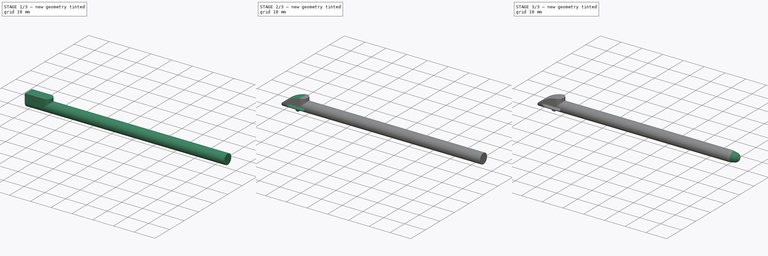
[diagram: build sequence overview — one tinted view per stage of 3, left to right]
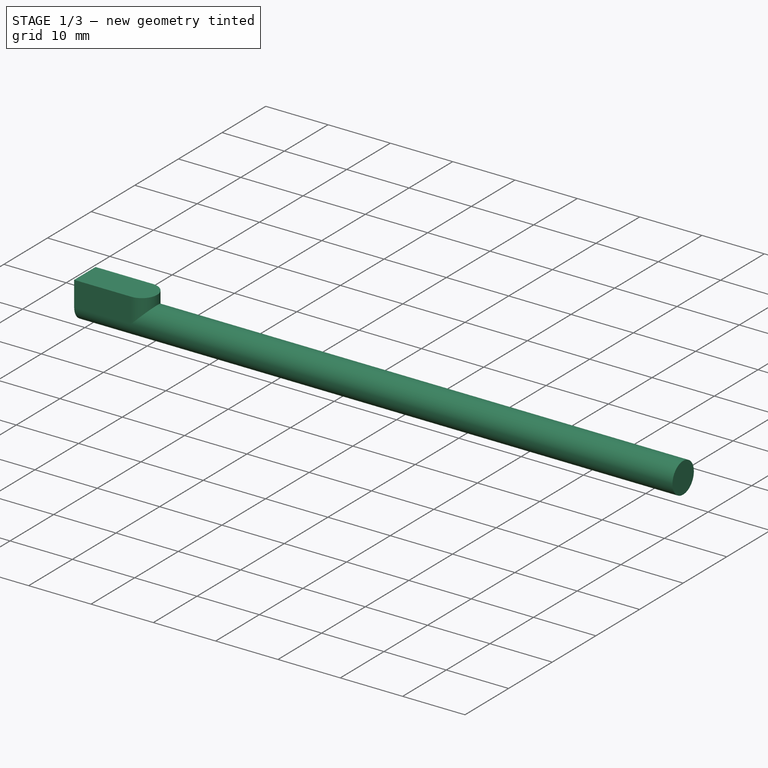
[diagram: stage 1 of 3 — iso view after this stage's code; geometry added in this stage tinted green]
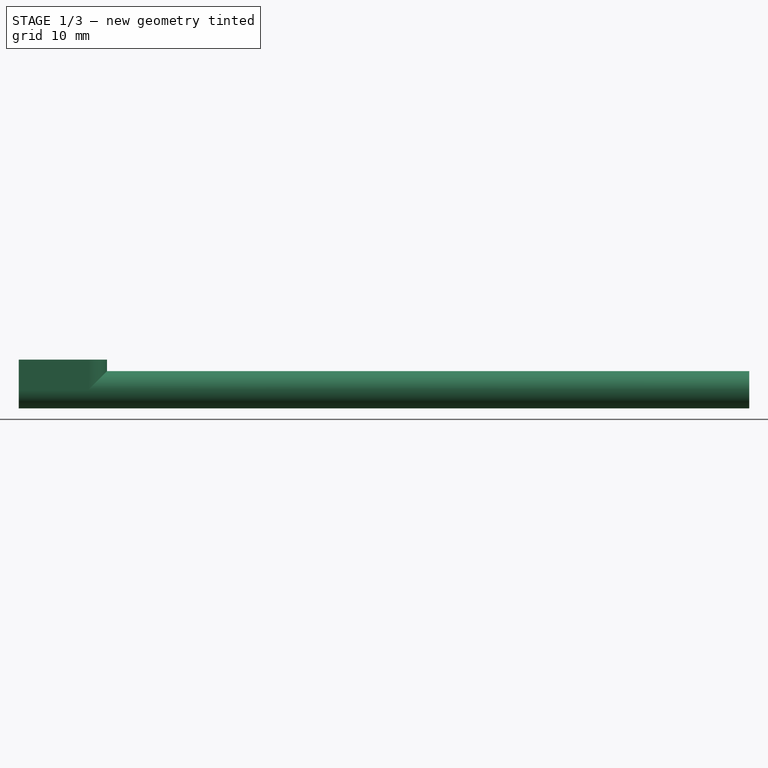
[diagram: stage 1 of 3 — front view after this stage's code; geometry added in this stage tinted green]
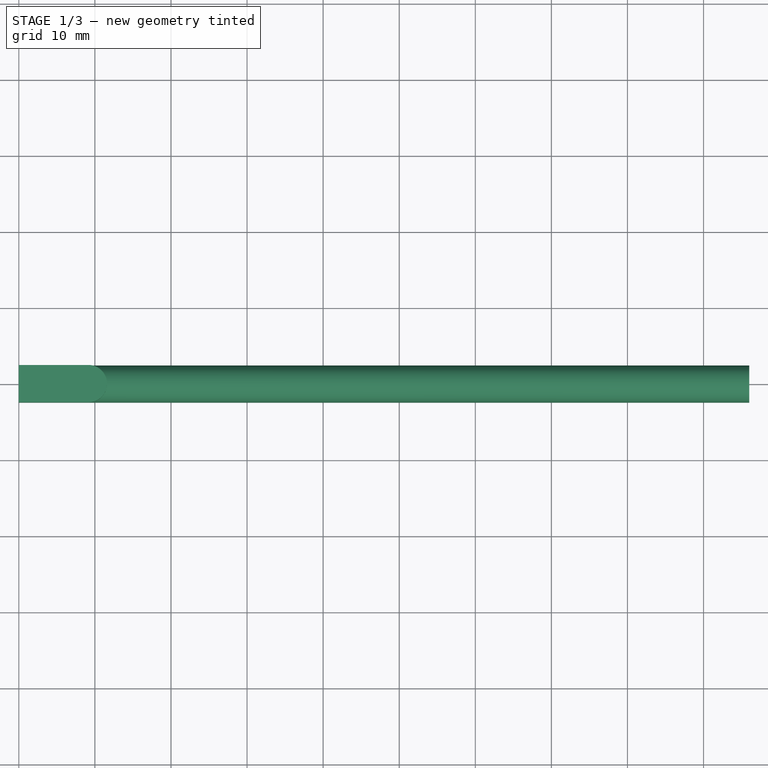
[diagram: stage 1 of 3 — top view after this stage's code; geometry added in this stage tinted green]
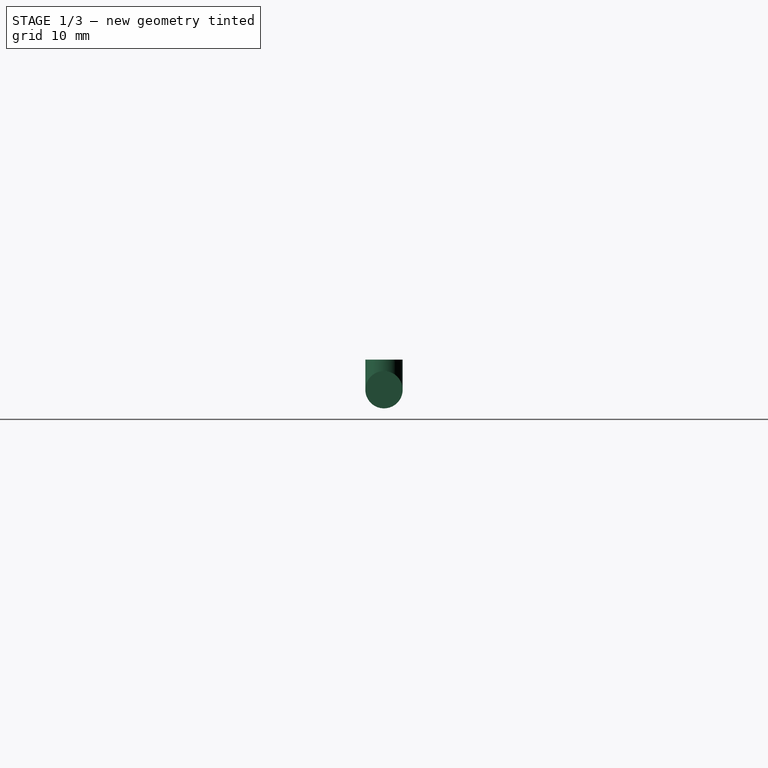
[diagram: stage 1 of 3 — right view after this stage's code; geometry added in this stage tinted green]
FCSTD DOCUMENT  (FreeCAD 1.0R39109 (Git))
Label: 3DS XL Stylus
License: Creative Commons Attribution-NonCommercial-ShareAlike 4.0
LicenseURL: https://creativecommons.org/licenses/by-nc-sa/4.0/
objects: Sketcher::SketchObject×7, PartDesign::Pad×3, PartDesign::Pocket×3, PartDesign::Groove×1, PartDesign::Body×1
note: 36 computed .brp shape members not serialized (recipe doc carries the construction recipe); baked Part::Feature solids carry a one-line shape summary decoded from their .brp

FEATURE [Sketcher::SketchObject] Sketch
  ArcFitTolerance = 0
  AttachmentSupport = -> [YZ_Plane]
  FullyConstrained = true
  MakeInternals = false
  MapMode = 5
  Placement = pos=(0,0,0) rot=(0.57735,0.57735,0.57735;2.0944rad)
  sketch-geometry (1):
    g0: Circle CenterX=0 CenterY=0 CenterZ=0 NormalX=0 NormalY=0 NormalZ=1 AngleXU=0 Radius=2.45
  constraints (2):
    c: Coincident(g0,g-1)
    c: Diameter(g0) = 4.9
FEATURE [PartDesign::Pad] Pad
  Direction = (1,0,0)
  Length = 96
  Length2 = 10
  Placement = pos=(0,0,0) rot=(0.57735,0.57735,0.57735;2.0944rad)
  Profile = -> Sketch
  ReferenceAxis = -> Sketch [N_Axis]
  Suppressed = false
  Type = 0
FEATURE [Sketcher::SketchObject] Sketch001
  ArcFitTolerance = 0
  AttachmentSupport = -> [XY_Plane]
  ExternalGeometry = -> [Pad]
  FullyConstrained = true
  MakeInternals = false
  MapMode = 5
  sketch-geometry (7):
    g0: LineSegment [constr] StartX=0 StartY=2.45 StartZ=0 EndX=11.6 EndY=2.45 EndZ=0
    g1: LineSegment [constr] StartX=11.6 StartY=2.45 StartZ=0 EndX=11.6 EndY=-2.45 EndZ=0
    g2: LineSegment [constr] StartX=11.6 StartY=-2.45 StartZ=0 EndX=0 EndY=-2.45 EndZ=0
    g3: LineSegment StartX=0 StartY=-2.45 StartZ=0 EndX=0 EndY=2.45 EndZ=0
    g4: ArcOfCircle CenterX=9.15 CenterY=-3e-16 CenterZ=0 NormalX=0 NormalY=0 NormalZ=1 AngleXU=0 Radius=2.45 StartAngle=4.71239 EndAngle=7.85398
    g5: LineSegment StartX=0 StartY=2.45 StartZ=0 EndX=9.15 EndY=2.45 EndZ=0
    g6: LineSegment StartX=9.15 StartY=-2.45 StartZ=0 EndX=0 EndY=-2.45 EndZ=0
  constraints (17):
    c: Coincident(g0,g1)
    c: Coincident(g1,g2)
    c: Coincident(g2,g3)
    c: Coincident(g3,g0)
    c: Horizontal(g0)
    c: Horizontal(g2)
    c: Vertical(g1)
    c: Coincident(g0,g-3)
    c: Coincident(g2,g-3)
    c: Distance(g0) = 11.6
    c: Tangent(g4,g1)
    c: Tangent(g4,g0) = 1.5708
    c: Tangent(g4,g2) = 1.5708
    c: Coincident(g5,g3)
    c: Coincident(g5,g4)
    c: Coincident(g6,g4)
    c: Coincident(g6,g3)
FEATURE [PartDesign::Pad] Pad001
  BaseFeature = -> Pad
  Direction = (0,0,1)
  Length = 3.95
  Length2 = 10
  Placement = pos=(0,0,0) rot=(0.57735,0.57735,0.57735;2.0944rad)
  Profile = -> Sketch001
  ReferenceAxis = -> Sketch001 [N_Axis]
  Refine = true
  Suppressed = false
  Type = 0
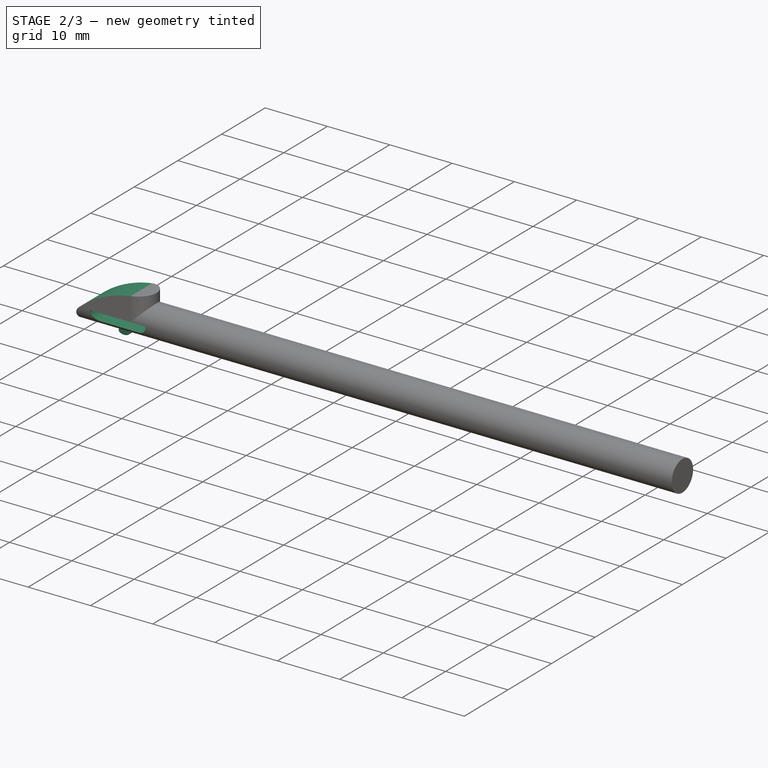
[diagram: stage 2 of 3 — iso view after this stage's code; geometry added in this stage tinted green]
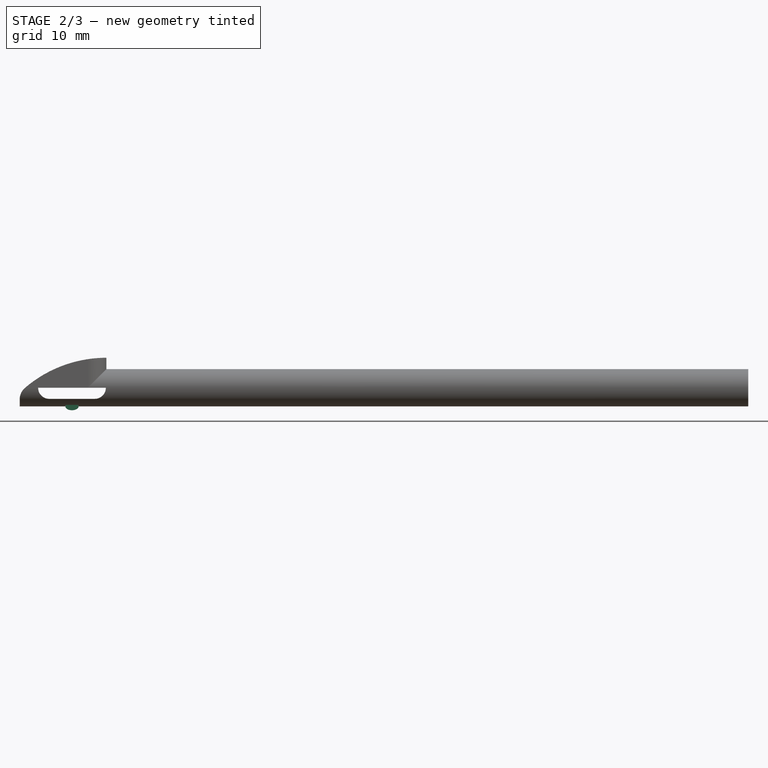
[diagram: stage 2 of 3 — front view after this stage's code; geometry added in this stage tinted green]
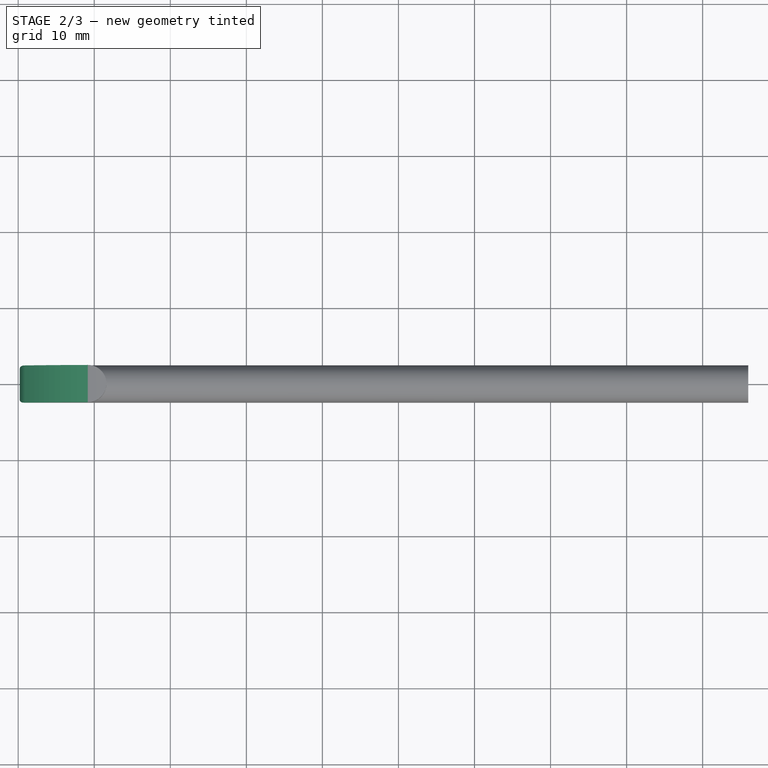
[diagram: stage 2 of 3 — top view after this stage's code; geometry added in this stage tinted green]
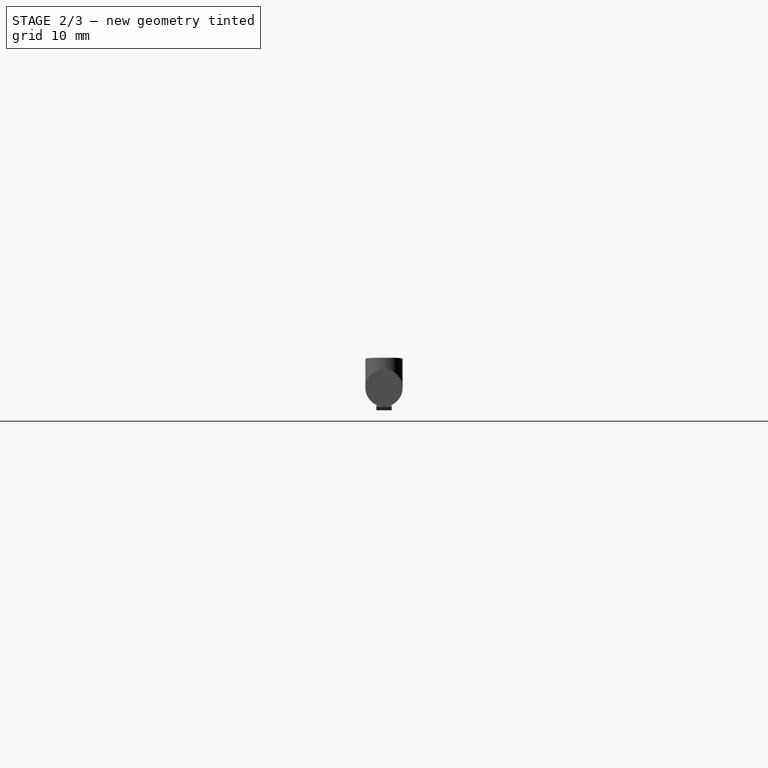
[diagram: stage 2 of 3 — right view after this stage's code; geometry added in this stage tinted green]
FEATURE [Sketcher::SketchObject] Sketch002
  ArcFitTolerance = 0
  AttachmentSupport = -> [Pad001]
  ExternalGeometry = -> [Pad001]
  FullyConstrained = true
  MakeInternals = false
  MapMode = 5
  Placement = pos=(-7e-16,-2.45,3e-16) rot=(0.57735,0.57735,-0.57735;2.0944rad)
  sketch-geometry (9):
    g0: LineSegment [constr] StartX=2.45 StartY=7e-16 StartZ=0 EndX=2.45 EndY=0.2 EndZ=0
    g1: LineSegment [constr] StartX=2.45 StartY=0.2 StartZ=0 EndX=0.634438 EndY=0.2 EndZ=0
    g2: ArcOfCircle [constr] CenterX=12.5163 CenterY=11.6 CenterZ=0 NormalX=0 NormalY=0 NormalZ=1 AngleXU=0 Radius=16.4663 StartAngle=3.14159 EndAngle=3.9063
    g3: LineSegment StartX=-3.95 StartY=11.6 StartZ=0 EndX=-3.95 EndY=-0.8 EndZ=0
    g4: LineSegment StartX=-3.95 StartY=-0.8 StartZ=0 EndX=2.45 EndY=-0.8 EndZ=0
    g5: LineSegment StartX=2.45 StartY=-0.8 StartZ=0 EndX=2.45 EndY=0.2 EndZ=0
    g6: ArcOfCircle CenterX=1.52023 CenterY=2.2 CenterZ=0 NormalX=0 NormalY=0 NormalZ=1 AngleXU=0 Radius=2 StartAngle=3.8489 EndAngle=4.71239
    g7: ArcOfCircle CenterX=12.5163 CenterY=11.6 CenterZ=0 NormalX=0 NormalY=0 NormalZ=1 AngleXU=0 Radius=16.4663 StartAngle=3.14159 EndAngle=3.8489
    g8: LineSegment StartX=1.52023 StartY=0.2 StartZ=0 EndX=2.45 EndY=0.2 EndZ=0
  constraints (24):
    c: Vertical(g0)
    c: Distance(g0) = 0.2
    c: Coincident(g1,g0)
    c: Horizontal(g1)
    c: Tangent(g2,g-3) = -1.5708
    c: Coincident(g3,g2)
    c: Vertical(g3)
    c: Coincident(g4,g3)
    c: Horizontal(g4)
    c: Coincident(g5,g4)
    c: Vertical(g5)
    c: Distance(g5) = 1
    c: Tangent(g6,g2) = -1.5708
    c: Radius(g6) = 2
    c: Coincident(g7,g6)
    c: Coincident(g7,g3)
    c: Equal(g2,g7)
    c: Tangent(g6,g1) = 1.5708
    c: Coincident(g1,g2)
    c: Coincident(g8,g6)
    c: Coincident(g8,g0)
    c: Coincident(g5,g8)
    c: PointOnObject(g6,g-2)
    c: Coincident(g0,g-4)
FEATURE [PartDesign::Pocket] Pocket
  BaseFeature = -> Pad001
  Direction = (0,1,0)
  Length = 5
  Length2 = 5
  Placement = pos=(0,0,0) rot=(0.57735,0.57735,0.57735;2.0944rad)
  Profile = -> Sketch002
  ReferenceAxis = -> Sketch002 [N_Axis]
  Suppressed = false
  Type = 0
FEATURE [Sketcher::SketchObject] Sketch003
  ArcFitTolerance = 0
  AttachmentSupport = -> [XZ_Plane]
  ExternalGeometry = -> [Pocket]
  FullyConstrained = true
  MakeInternals = false
  MapMode = 5
  Placement = pos=(0,0,0) rot=(1,0,0;1.5708rad)
  sketch-geometry (9):
    g0: LineSegment [constr] StartX=0 StartY=0 StartZ=0 EndX=6.2 EndY=0 EndZ=0
    g1: LineSegment [constr] StartX=6.2 StartY=0 StartZ=0 EndX=6.2 EndY=-2.45 EndZ=0
    g2: LineSegment [constr] StartX=6.2 StartY=-2.45 StartZ=0 EndX=7.95 EndY=-2.45 EndZ=0
    g3: Ellipse CenterX=7.075 CenterY=-2.45 CenterZ=0 NormalX=0 NormalY=0 NormalZ=1 MajorRadius=0.875 MinorRadius=0.5 AngleXU=0
    g4: LineSegment [constr] StartX=7.95 StartY=-2.45 StartZ=0 EndX=6.2 EndY=-2.45 EndZ=0
    g5: LineSegment [constr] StartX=7.075 StartY=-1.95 StartZ=0 EndX=7.075 EndY=-2.95 EndZ=0
    g6: GeomPoint [constr] X=7.79307 Y=-2.45 Z=0
    g7: GeomPoint [constr] X=6.35693 Y=-2.45 Z=0
    g8: LineSegment [constr] StartX=0.2 StartY=-2.45 StartZ=0 EndX=6.2 EndY=-2.45 EndZ=0
  constraints (15):
    c: Coincident(g0,g-1)
    c: Horizontal(g0)
    c: Coincident(g1,g0)
    c: Vertical(g1)
    c: Coincident(g2,g1)
    c: Horizontal(g2)
    c: Distance(g0) = 6.2
    c: InternalAlignment(g4-g7 -> g3) x4
    c: Distance(g5) = 1
    c: Distance(g4) = 1.75
    c: Symmetric(g1,g2,g3)
    c: Coincident(g4,g1)
    c: Coincident(g8,g-3)
    c: Coincident(g8,g1)
    c: Horizontal(g8)
FEATURE [PartDesign::Pad] Pad002
  BaseFeature = -> Pocket
  Direction = (0,-1,2e-16)
  Length = 1
  Length2 = 1
  Placement = pos=(0,0,0) rot=(0.57735,0.57735,0.57735;2.0944rad)
  Profile = -> Sketch003
  ReferenceAxis = -> Sketch003 [N_Axis]
  Suppressed = false
  Type = 4
FEATURE [Sketcher::SketchObject] Sketch004
  ArcFitTolerance = 0
  AttachmentSupport = -> [Pad002]
  ExternalGeometry = -> [Pad002]
  FullyConstrained = true
  MakeInternals = false
  MapMode = 5
  Placement = pos=(-7e-16,-2.45,1.9e-15) rot=(0.57735,0.57735,-0.57735;2.0944rad)
  sketch-geometry (8):
    g0: ArcOfCircle [constr] CenterX=-1e-16 CenterY=4.075 CenterZ=0 NormalX=0 NormalY=0 NormalZ=1 AngleXU=0 Radius=1.45 StartAngle=3.14159 EndAngle=6.28319
    g1: ArcOfCircle [constr] CenterX=0 CenterY=10.075 CenterZ=0 NormalX=0 NormalY=0 NormalZ=1 AngleXU=0 Radius=1.45 StartAngle=0 EndAngle=3.14159
    g2: LineSegment StartX=1.45 StartY=4.075 StartZ=0 EndX=1.45 EndY=10.075 EndZ=0
    g3: LineSegment [constr] StartX=-1.45 StartY=10.075 StartZ=0 EndX=-1.45 EndY=4.075 EndZ=0
    g4: LineSegment [constr] StartX=2.45 StartY=7.075 StartZ=0 EndX=1.45 EndY=7.075 EndZ=0
    g5: LineSegment StartX=-5e-16 StartY=2.625 StartZ=0 EndX=-5e-16 EndY=11.525 EndZ=0
    g6: ArcOfCircle CenterX=1e-16 CenterY=10.075 CenterZ=0 NormalX=0 NormalY=0 NormalZ=1 AngleXU=0 Radius=1.45 StartAngle=0 EndAngle=1.5708
    g7: ArcOfCircle CenterX=0 CenterY=4.075 CenterZ=0 NormalX=0 NormalY=0 NormalZ=1 AngleXU=0 Radius=1.45 StartAngle=4.71239 EndAngle=6.28319
  constraints (22):
    c: Tangent(g0,g2) = -1.5708
    c: Tangent(g2,g1) = -1.5708
    c: Tangent(g1,g3) = -1.5708
    c: Tangent(g3,g0) = -1.5708
    c: Equal(g0,g1)
    c: PointOnObject(g1,g-2)
    c: Horizontal(g4)
    c: Symmetric(g1,g0,g4)
    c: Distance(g4) = 1
    c: Distance(g2) = 6
    c: PointOnObject(g5,g0)
    c: PointOnObject(g5,g1)
    c: Vertical(g5)
    c: Coincident(g6,g2)
    c: Coincident(g6,g5)
    c: Coincident(g7,g5)
    c: Coincident(g7,g2)
    c: Equal(g6,g1)
    c: Equal(g0,g7)
    c: Coincident(g-3,g4)
    c: PointOnObject(g5,g-4)
    c: Vertical(g2)
FEATURE [PartDesign::Pocket] Pocket001
  BaseFeature = -> Pad002
  Direction = (0,1,0)
  Length = 10
  Length2 = 5
  Placement = pos=(0,0,0) rot=(0.57735,0.57735,0.57735;2.0944rad)
  Profile = -> Sketch004
  ReferenceAxis = -> Sketch004 [N_Axis]
  Suppressed = false
  Type = 0
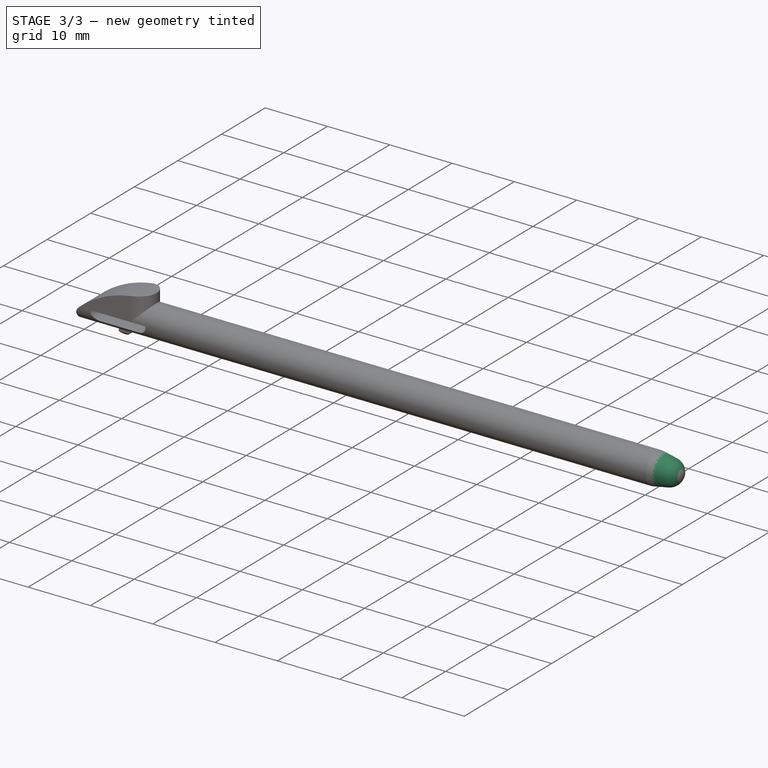
[diagram: stage 3 of 3 — iso view after this stage's code; geometry added in this stage tinted green]
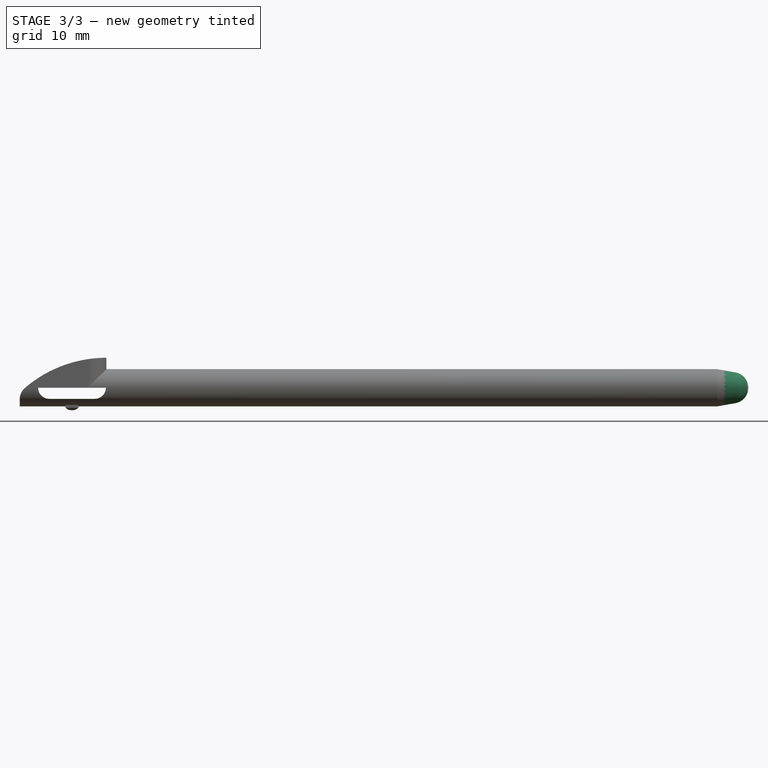
[diagram: stage 3 of 3 — front view after this stage's code; geometry added in this stage tinted green]
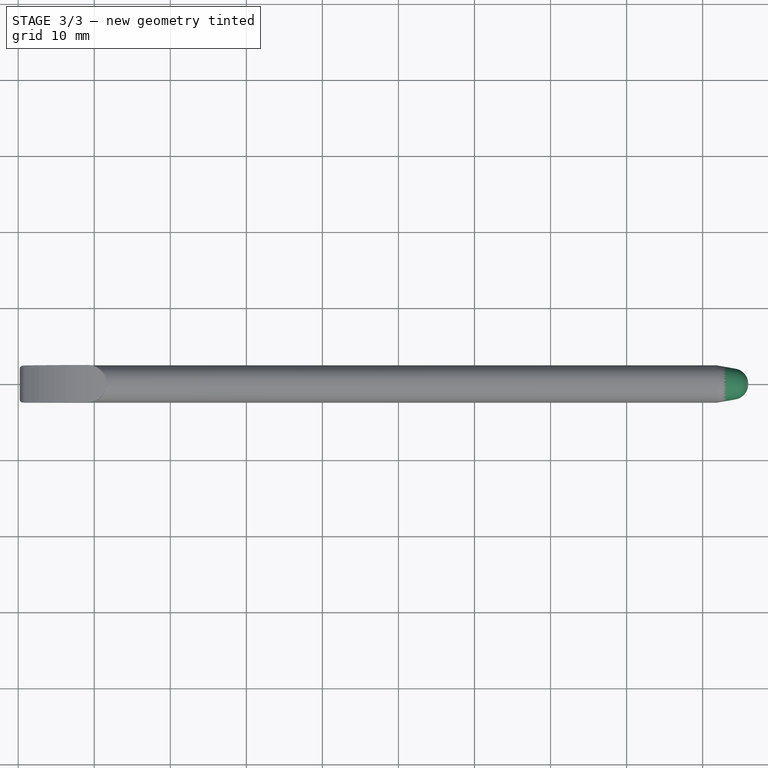
[diagram: stage 3 of 3 — top view after this stage's code; geometry added in this stage tinted green]
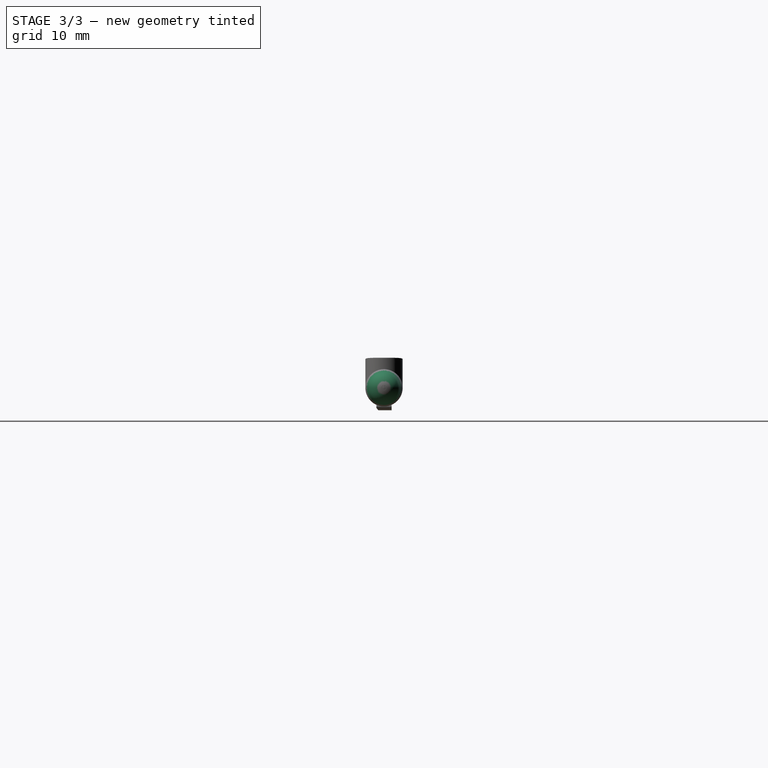
[diagram: stage 3 of 3 — right view after this stage's code; geometry added in this stage tinted green]
FEATURE [Sketcher::SketchObject] Sketch005
  ArcFitTolerance = 0
  AttachmentSupport = -> [XZ_Plane]
  ExternalGeometry = -> [Pocket001]
  FullyConstrained = true
  MakeInternals = false
  MapMode = 5
  Placement = pos=(0,0,0) rot=(1,0,0;1.5708rad)
  sketch-geometry (6):
    g0: LineSegment StartX=96 StartY=2.45 StartZ=0 EndX=91.9 EndY=2.45 EndZ=0
    g1: LineSegment StartX=96 StartY=2.45 StartZ=0 EndX=97 EndY=2.45 EndZ=0
    g2: LineSegment StartX=97 StartY=2.45 StartZ=0 EndX=97 EndY=0 EndZ=0
    g3: ArcOfCircle CenterX=93.95 CenterY=-1.96666e-07 CenterZ=0 NormalX=0 NormalY=0 NormalZ=1 AngleXU=0 Radius=2.05 StartAngle=9.59347e-08 EndAngle=1.39348
    g4: LineSegment StartX=91.9 StartY=2.45 StartZ=0 EndX=94.3116 EndY=2.01786 EndZ=0
    g5: LineSegment StartX=96 StartY=4.32e-14 StartZ=0 EndX=97 EndY=0 EndZ=0
  constraints (16):
    c: Coincident(g0,g-3)
    c: Horizontal(g0)
    c: Distance(g0) = 4.1
    c: Coincident(g1,g0)
    c: Horizontal(g1)
    c: Coincident(g2,g1)
    c: PointOnObject(g2,g-1)
    c: Vertical(g2)
    c: Distance(g1) = 1
    c: Coincident(g4,g0)
    c: Tangent(g4,g3) = 1.5708
    c: Symmetric(g0,g-3,g3)
    c: Diameter(g3) = 4.1
    c: Coincident(g5,g3)
    c: Coincident(g5,g2)
    c: Tangent(g3,g-3)
FEATURE [PartDesign::Groove] Groove
  Angle = 360
  Angle2 = 60
  Axis = (1,0,0)
  Base = (0,0,0)
  BaseFeature = -> Pocket001
  Placement = pos=(0,0,0) rot=(0.57735,0.57735,0.57735;2.0944rad)
  Profile = -> Sketch005
  ReferenceAxis = -> Sketch005 [H_Axis]
  Reversed = true
  Suppressed = false
  Type = 0
FEATURE [Sketcher::SketchObject] Sketch006
  ArcFitTolerance = 0
  AttachmentSupport = -> [YZ_Plane]
  ExternalGeometry = -> [Groove]
  FullyConstrained = true
  MakeInternals = false
  MapMode = 5
  Placement = pos=(0,0,0) rot=(0.57735,0.57735,0.57735;2.0944rad)
  sketch-geometry (7):
    g0: LineSegment [constr] StartX=-1 StartY=-2.95 StartZ=0 EndX=1 EndY=-2.95 EndZ=0
    g1: LineSegment [constr] StartX=-0.747522 StartY=-2.95 StartZ=0 EndX=-1 EndY=-2.63975 EndZ=0
    g2: LineSegment [constr] StartX=-1 StartY=-2.63975 StartZ=0 EndX=-1.7677 EndY=-1.69639 EndZ=0
    g3: LineSegment [constr] StartX=-1.7677 StartY=-1.69639 StartZ=0 EndX=-2.02017 EndY=-1.38614 EndZ=0
    g4: LineSegment StartX=-2.02017 StartY=-1.38614 StartZ=0 EndX=-0.747522 EndY=-2.95 EndZ=0
    g5: LineSegment StartX=-0.747522 StartY=-2.95 StartZ=0 EndX=-2.02017 EndY=-2.95 EndZ=0
    g6: LineSegment StartX=-2.02017 StartY=-1.38614 StartZ=0 EndX=-2.02017 EndY=-2.95 EndZ=0
  constraints (19):
    c: Coincident(g0,g-4)
    c: Coincident(g0,g-5)
    c: PointOnObject(g1,g0)
    c: PointOnObject(g1,g-4)
    c: Coincident(g2,g1)
    c: PointOnObject(g2,g-3)
    c: Coincident(g3,g2)
    c: PointOnObject(g3,g-3)
    c: Distance(g3) = 0.4
    c: Distance(g1) = 0.4
    c: Parallel(g3,g2)
    c: Parallel(g2,g1)
    c: Coincident(g4,g3)
    c: Coincident(g4,g1)
    c: Coincident(g5,g4)
    c: Horizontal(g5)
    c: Coincident(g6,g4)
    c: Coincident(g6,g5)
    c: Vertical(g6)
FEATURE [PartDesign::Pocket] Pocket002
  BaseFeature = -> Groove
  Direction = (-1,0,0)
  Length = 100
  Length2 = 100
  Placement = pos=(0,0,0) rot=(0.57735,0.57735,0.57735;2.0944rad)
  Profile = -> Sketch006
  ReferenceAxis = -> Sketch006 [N_Axis]
  Suppressed = false
  Type = 4
FEATURE [PartDesign::Body] Body  label="Nintendo 3DS XL Stylus"
  AllowCompound = false
  Group = -> [Sketch,Pad,Sketch001,Pad001,Sketch002,Pocket,Sketch003,Pad002,Sketch004,Pocket001,Sketch005,Groove,Sketch006,Pocket002]
  Origin = -> Origin
  Placement = pos=(0,0,0) rot=(1,0,0;0.887674rad)
  Tip = -> Pocket002
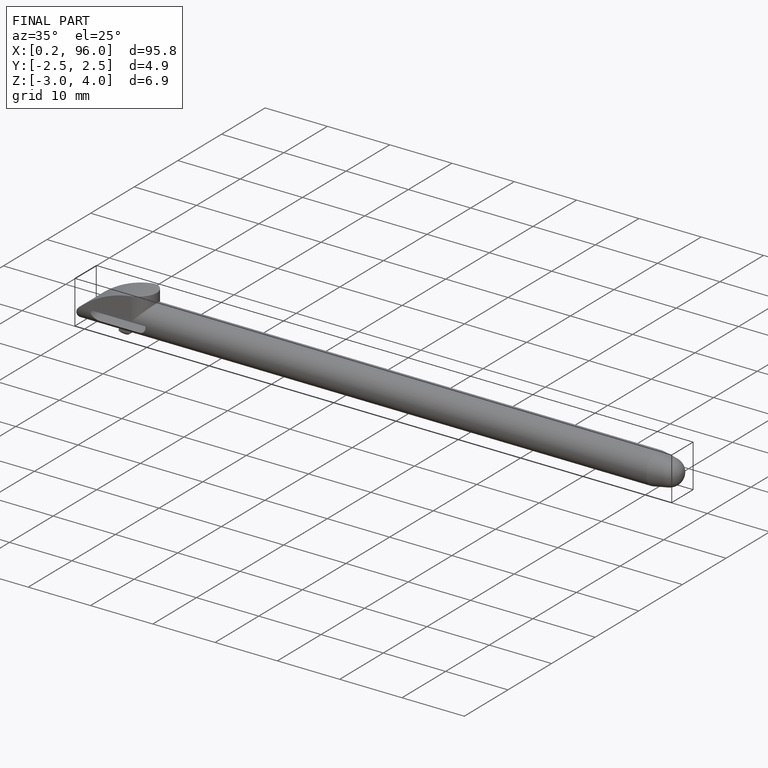
[diagram: finished part — iso view with bounding-box wireframe]
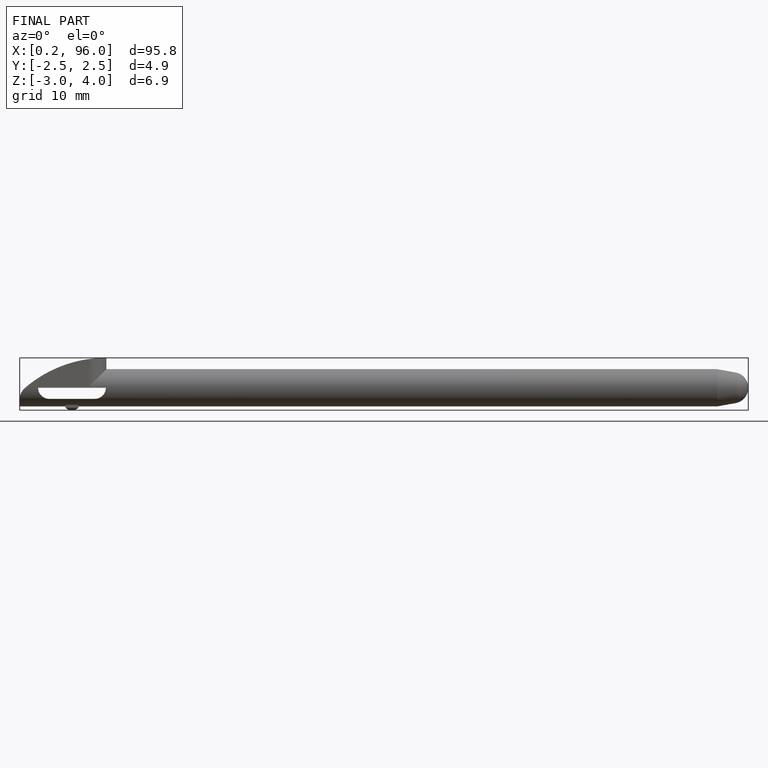
[diagram: finished part — front view with bounding-box wireframe]
